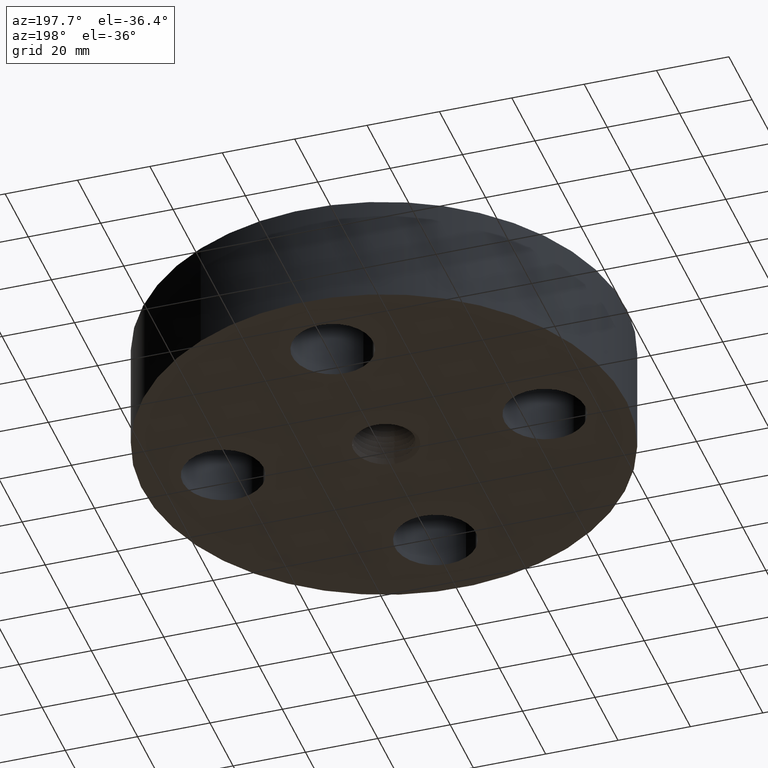
[diagram: clean part render]
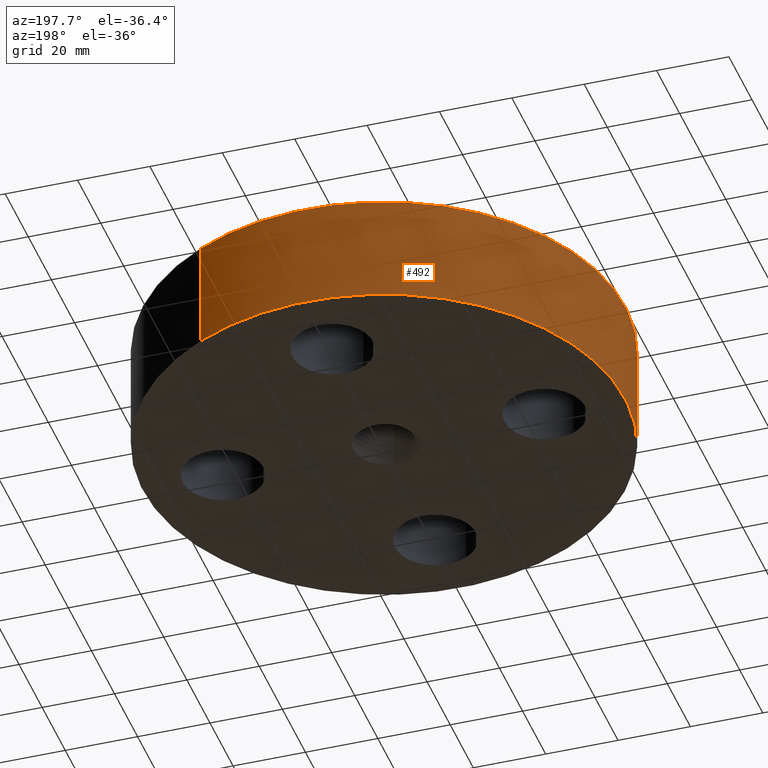
[diagram: same view with one face highlighted and labeled with its STEP entity id]
A machine part, auxiliary view. The second image highlights one B-rep face of the part: STEP entity #492.
In plain terms, the highlighted cylindrical surface (partial cylindrical patch) has radius 66.675 mm, axis along (0, 0, -1).
Its self-contained STEP definition (entity closure, byte-faithful):
#181=AXIS2_PLACEMENT_3D('Circle Axis2P3D',#179,#180,$) ;
#453=AXIS2_PLACEMENT_3D('Cylinder Axis2P3D',#450,#451,#452) ;
#483=AXIS2_PLACEMENT_3D('Circle Axis2P3D',#481,#482,$) ;
#174=CARTESIAN_POINT('Vertex',(1.25849203884,2.30365422497,0.)) ;
#176=CARTESIAN_POINT('Vertex',(-1.25849203884,-2.30365422497,0.)) ;
#179=CARTESIAN_POINT('Axis2P3D Location',(0.,0.,0.)) ;
#450=CARTESIAN_POINT('Axis2P3D Location',(0.,0.,0.780000000003)) ;
#455=CARTESIAN_POINT('Line Origine',(1.25849203884,2.30365422497,0.595000000002)) ;
#459=CARTESIAN_POINT('Vertex',(1.25849203884,2.30365422497,1.19)) ;
#466=CARTESIAN_POINT('Vertex',(-1.25849203884,-2.30365422497,1.19)) ;
#469=CARTESIAN_POINT('Line Origine',(-1.25849203884,-2.30365422497,0.595000000002)) ;
#481=CARTESIAN_POINT('Axis2P3D Location',(0.,0.,1.19)) ;
#180=DIRECTION('Axis2P3D Direction',(0.,0.,-0.0393700787402)) ;
#451=DIRECTION('Axis2P3D Direction',(0.,0.,-0.0393700787402)) ;
#452=DIRECTION('Axis2P3D XDirection',(-0.0188750212049,-0.0345504945626,0.)) ;
#456=DIRECTION('Vector Direction',(0.,0.,-0.0393700787402)) ;
#470=DIRECTION('Vector Direction',(0.,0.,-0.0393700787402)) ;
#482=DIRECTION('Axis2P3D Direction',(0.,0.,-0.0393700787402)) ;
#457=VECTOR('Line Direction',#456,0.0393700787402) ;
#471=VECTOR('Line Direction',#470,0.0393700787402) ;
#487=ORIENTED_EDGE('',*,*,#183,.F.) ;
#488=ORIENTED_EDGE('',*,*,#473,.T.) ;
#489=ORIENTED_EDGE('',*,*,#485,.T.) ;
#490=ORIENTED_EDGE('',*,*,#461,.F.) ;
#492=ADVANCED_FACE('PartBody',(#491),#454,.T.) ;
#182=CIRCLE('generated circle',#181,2.62500000001) ;
#484=CIRCLE('generated circle',#483,2.62500000001) ;
#454=CYLINDRICAL_SURFACE('generated cylinder',#453,2.62500000001) ;
#183=EDGE_CURVE('',#177,#175,#182,.T.) ;
#461=EDGE_CURVE('',#175,#460,#458,.F.) ;
#473=EDGE_CURVE('',#177,#467,#472,.F.) ;
#485=EDGE_CURVE('',#467,#460,#484,.T.) ;
#486=EDGE_LOOP('',(#487,#488,#489,#490)) ;
#491=FACE_OUTER_BOUND('',#486,.T.) ;
#458=LINE('Line',#455,#457) ;
#472=LINE('Line',#469,#471) ;
#175=VERTEX_POINT('',#174) ;
#177=VERTEX_POINT('',#176) ;
#460=VERTEX_POINT('',#459) ;
#467=VERTEX_POINT('',#466) ;